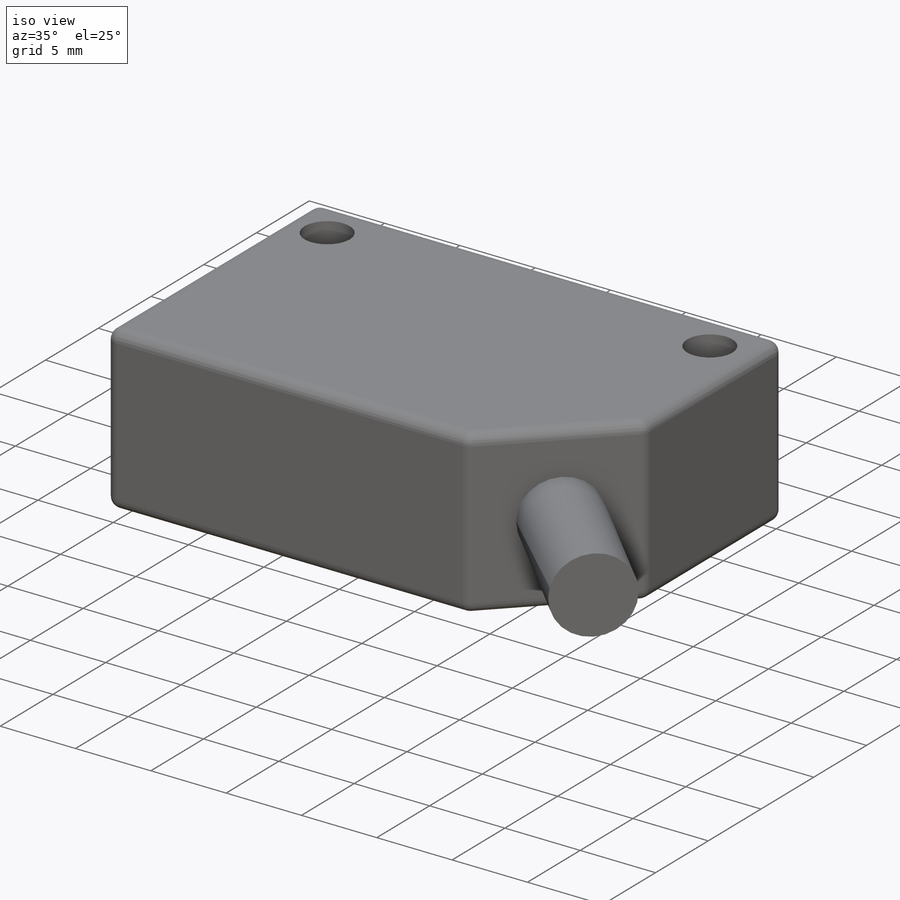
[diagram: iso view]
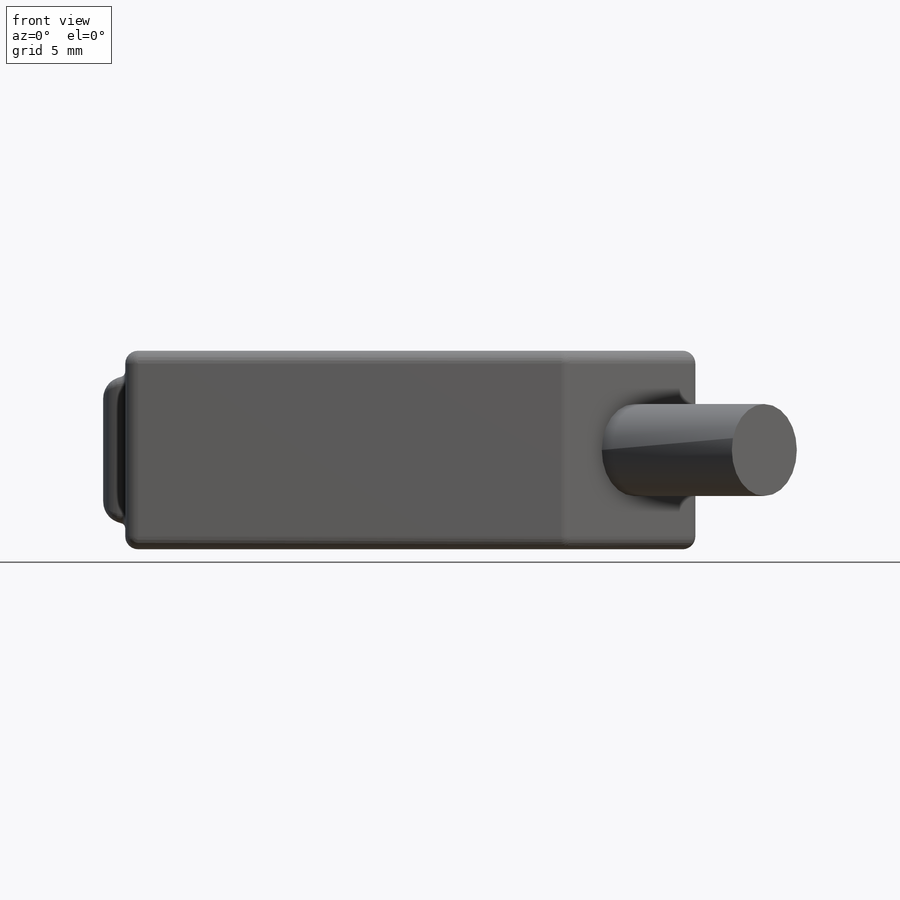
[diagram: front view]
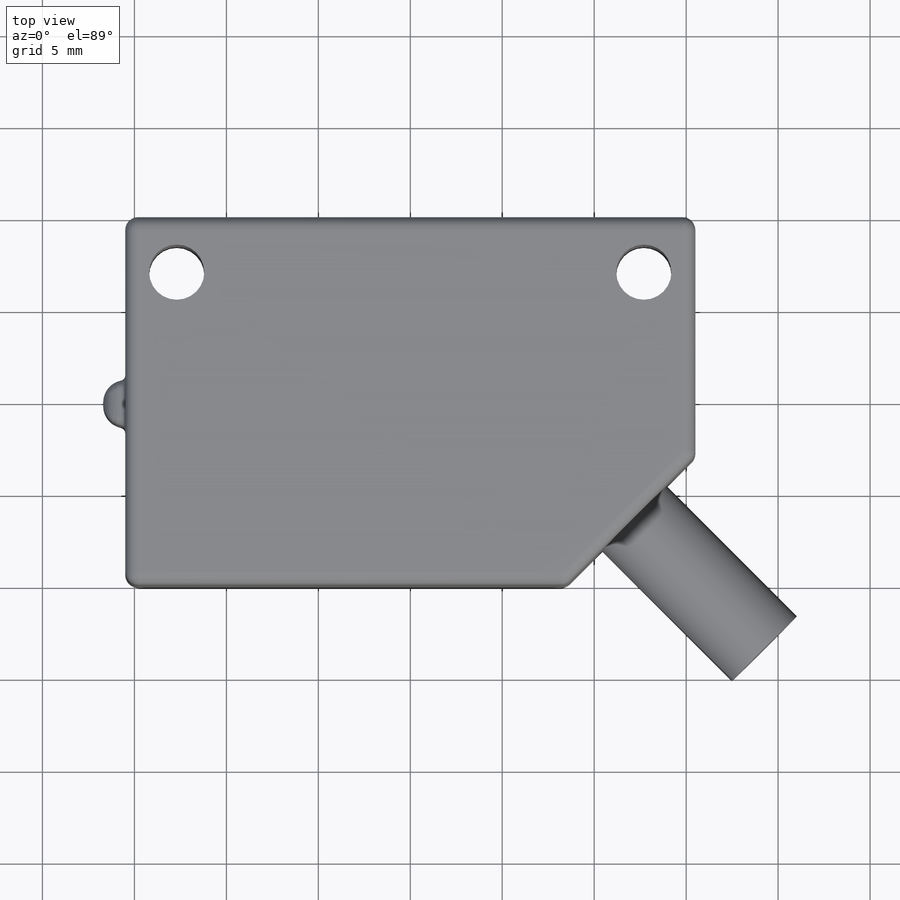
[diagram: top view]
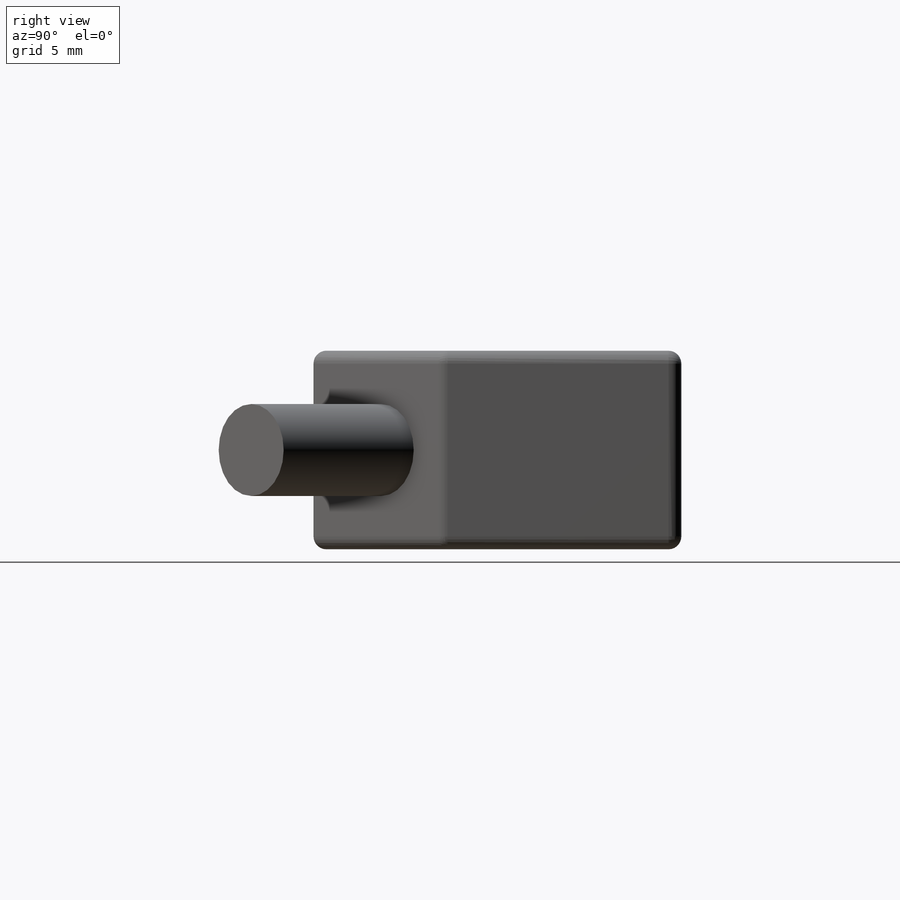
[diagram: right view]
SOLIDWORKS PART (.sldprt)
format: sldprt  version: not decoded by parser v0  size: 301,568 bytes
history: native  units: mm
features: sketch x6, fillet x4, extrude x3, cut_extrude x2, material x1 (+12 scaffold rows collapsed)
feature tree (28):
  scaffold x12  (default folders/planes/origin — collapsed)
  material  "Material <not specified>"
  sketch  "Sketch1"  dims[D1=31.0mm D2=20.0mm D3=7.0mm D4=7.0mm]
  extrude  "Boss-Extrude1"  Depth=10.8mm
  sketch  "Sketch2"  dims[D1=2.5mm D2=8.0mm D3=1.4mm]
  extrude  "Boss-Extrude2"  Depth=1.2mm
  fillet  "Fillet2"  Radius=1.2mm
  fillet  "Fillet3"  Radius=0.5mm
  fillet  "Fillet5"  Radius=0.3mm
  fillet  "Fillet7"  Radius=0.7mm
  sketch  "Sketch3"  dims[D1=8.0mm D2=11.0mm D3=1.4mm D4=10.0mm]
  sketch  "Sketch4"  dims[c1.D1=5.4mm c1.D2=~5.400254mm c2.D1=4.9mm c2.D2=4.9mm c3.D1=~9.814571mm]
  extrude  "Boss-Extrude3"  Depth=10mm
  sketch  "Sketch5"  dims[D1=2.8mm D2=3.0mm]
  cut_extrude  "Cut-Extrude1"  Depth=10.8mm
  sketch  "Sketch6"  dims[D1=3.0mm D2=2.8mm]
  cut_extrude  "Cut-Extrude2"  Depth=10.8mm
decode coverage: 15 of 15 modeling features carry decoded parameters
note: ~ marks probable driven/reference dimensions
note: suppression state not decoded; provenance and decode notes live in map.json
